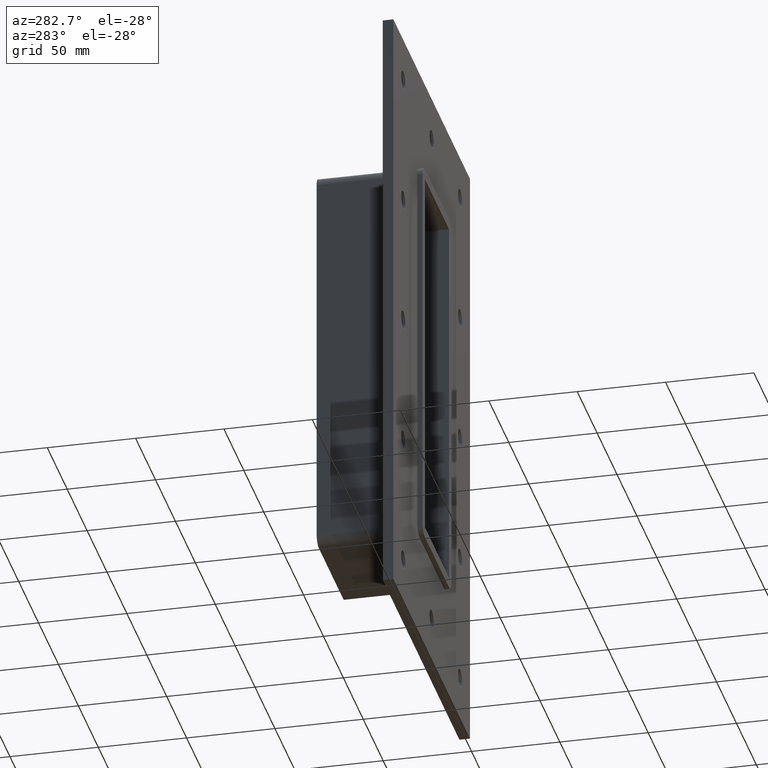
[diagram: clean part render]
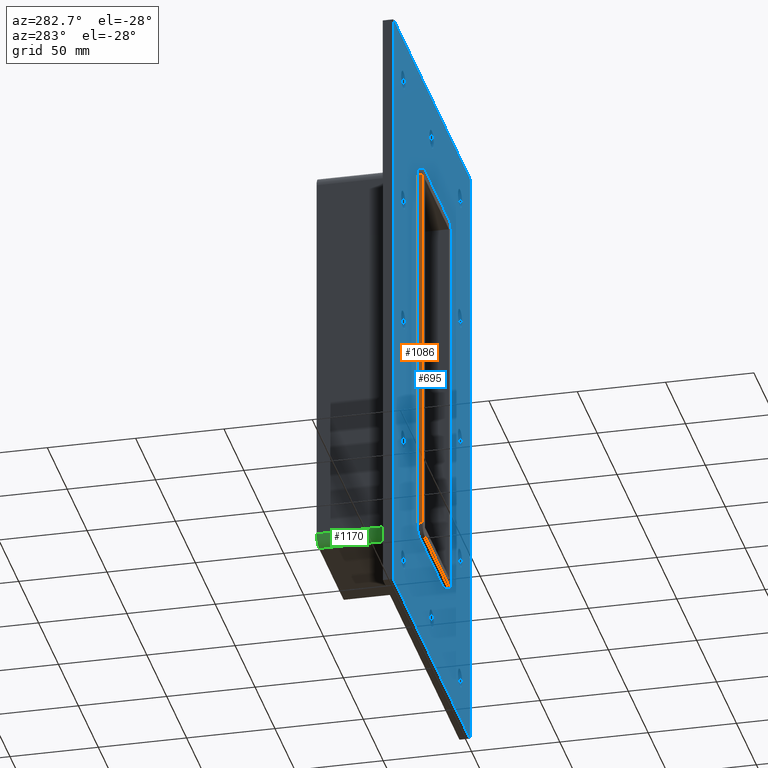
[diagram: same view with three faces highlighted in distinct colors, each labeled with its STEP entity id]
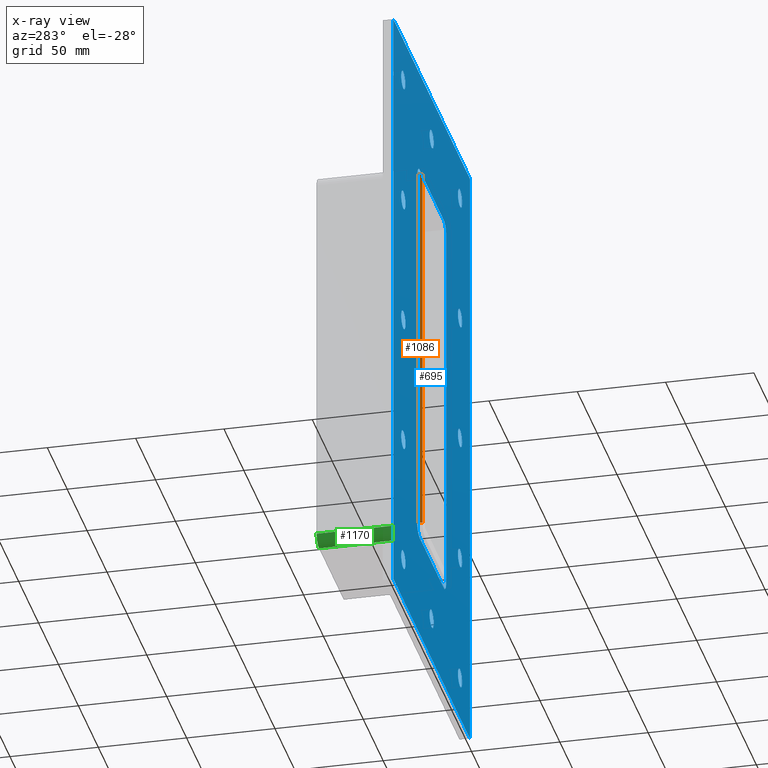
[diagram: x-ray of the same camera — body ghosted, the three highlighted faces saturated]
A machine part, auxiliary view with three faces highlighted in distinct colors.
The next image is the same camera in x-ray (body ghosted, the three faces saturated) — at least one of them is partly hidden behind the body in this view.
Their STEP definitions:

[orange] entity #1086 — the highlighted planar face has unit normal (-1, 0, 0).
#625=CARTESIAN_POINT('',(-36.250000000000007,0.0,-108.99999999999999));
#626=VERTEX_POINT('',#625);
#636=CARTESIAN_POINT('',(-36.250000000000007,0.0,108.99999999999999));
#637=VERTEX_POINT('',#636);
#638=CARTESIAN_POINT('',(-36.250000000000007,0.0,109.0));
#639=DIRECTION('',(0.0,0.0,-1.0));
#640=VECTOR('',#639,218.0);
#641=LINE('',#638,#640);
#642=EDGE_CURVE('',#637,#626,#641,.T.);
#996=CARTESIAN_POINT('',(-36.250000000000007,-3.0,108.99999999999999));
#997=VERTEX_POINT('',#996);
#998=CARTESIAN_POINT('',(-36.250000000000007,0.0,108.99999999999999));
#999=DIRECTION('',(0.0,-1.0,0.0));
#1000=VECTOR('',#999,3.0);
#1001=LINE('',#998,#1000);
#1002=EDGE_CURVE('',#637,#997,#1001,.T.);
#1063=CARTESIAN_POINT('',(-36.250000000000007,0.0,-115.0));
#1064=DIRECTION('',(-1.0,0.0,0.0));
#1065=DIRECTION('',(0.0,0.0,1.0));
#1066=AXIS2_PLACEMENT_3D('',#1063,#1064,#1065);
#1067=PLANE('',#1066);
#1068=ORIENTED_EDGE('',*,*,#642,.T.);
#1069=CARTESIAN_POINT('',(-36.250000000000007,-3.0,-108.99999999999999));
#1070=VERTEX_POINT('',#1069);
#1071=CARTESIAN_POINT('',(-36.250000000000007,-3.0,-108.99999999999999));
#1072=DIRECTION('',(0.0,1.0,0.0));
#1073=VECTOR('',#1072,3.0);
#1074=LINE('',#1071,#1073);
#1075=EDGE_CURVE('',#1070,#626,#1074,.T.);
#1076=ORIENTED_EDGE('',*,*,#1075,.F.);
#1077=CARTESIAN_POINT('',(-36.250000000000007,-3.0,109.0));
#1078=DIRECTION('',(0.0,0.0,-1.0));
#1079=VECTOR('',#1078,218.0);
#1080=LINE('',#1077,#1079);
#1081=EDGE_CURVE('',#997,#1070,#1080,.T.);
#1082=ORIENTED_EDGE('',*,*,#1081,.F.);
#1083=ORIENTED_EDGE('',*,*,#1002,.F.);
#1084=EDGE_LOOP('',(#1068,#1076,#1082,#1083));
#1085=FACE_OUTER_BOUND('',#1084,.T.);
#1086=ADVANCED_FACE('',(#1085),#1067,.T.);

[blue] entity #695 — the highlighted planar face has unit normal (0, 1, 0).
#84=CARTESIAN_POINT('',(-66.000000000000071,0.0,-150.0));
#85=VERTEX_POINT('',#84);
#86=CARTESIAN_POINT('',(-71.250000000000071,0.0,-150.0));
#87=DIRECTION('',(0.0,1.0,0.0));
#88=DIRECTION('',(1.0,0.0,0.0));
#89=AXIS2_PLACEMENT_3D('',#86,#87,#88);
#90=CIRCLE('',#89,5.25);
#91=EDGE_CURVE('',#85,#85,#90,.T.);
#112=CARTESIAN_POINT('',(76.599999999999937,0.0,-75.0));
#113=VERTEX_POINT('',#112);
#114=CARTESIAN_POINT('',(71.349999999999923,0.0,-75.0));
#115=DIRECTION('',(0.0,1.0,0.0));
#116=DIRECTION('',(1.0,0.0,0.0));
#117=AXIS2_PLACEMENT_3D('',#114,#115,#116);
#118=CIRCLE('',#117,5.25);
#119=EDGE_CURVE('',#113,#113,#118,.T.);
#140=CARTESIAN_POINT('',(-66.000000000000071,0.0,-75.0));
#141=VERTEX_POINT('',#140);
#142=CARTESIAN_POINT('',(-71.250000000000071,0.0,-75.0));
#143=DIRECTION('',(0.0,1.0,0.0));
#144=DIRECTION('',(1.0,0.0,0.0));
#145=AXIS2_PLACEMENT_3D('',#142,#143,#144);
#146=CIRCLE('',#145,5.25);
#147=EDGE_CURVE('',#141,#141,#146,.T.);
#168=CARTESIAN_POINT('',(76.599999999999937,0.0,0.0));
#169=VERTEX_POINT('',#168);
#170=CARTESIAN_POINT('',(71.349999999999923,0.0,0.0));
#171=DIRECTION('',(0.0,1.0,0.0));
#172=DIRECTION('',(1.0,0.0,0.0));
#173=AXIS2_PLACEMENT_3D('',#170,#171,#172);
#174=CIRCLE('',#173,5.25);
#175=EDGE_CURVE('',#169,#169,#174,.T.);
#196=CARTESIAN_POINT('',(-66.000000000000071,0.0,0.0));
#197=VERTEX_POINT('',#196);
#198=CARTESIAN_POINT('',(-71.250000000000071,0.0,0.0));
#199=DIRECTION('',(0.0,1.0,0.0));
#200=DIRECTION('',(1.0,0.0,0.0));
#201=AXIS2_PLACEMENT_3D('',#198,#199,#200);
#202=CIRCLE('',#201,5.25);
#203=EDGE_CURVE('',#197,#197,#202,.T.);
#224=CARTESIAN_POINT('',(76.599999999999937,0.0,75.0));
#225=VERTEX_POINT('',#224);
#226=CARTESIAN_POINT('',(71.349999999999923,0.0,75.0));
#227=DIRECTION('',(0.0,1.0,0.0));
#228=DIRECTION('',(1.0,0.0,0.0));
#229=AXIS2_PLACEMENT_3D('',#226,#227,#228);
#230=CIRCLE('',#229,5.25);
#231=EDGE_CURVE('',#225,#225,#230,.T.);
#252=CARTESIAN_POINT('',(-66.000000000000071,0.0,75.0));
#253=VERTEX_POINT('',#252);
#254=CARTESIAN_POINT('',(-71.250000000000071,0.0,75.0));
#255=DIRECTION('',(0.0,1.0,0.0));
#256=DIRECTION('',(1.0,0.0,0.0));
#257=AXIS2_PLACEMENT_3D('',#254,#255,#256);
#258=CIRCLE('',#257,5.25);
#259=EDGE_CURVE('',#253,#253,#258,.T.);
#280=CARTESIAN_POINT('',(5.299999999999931,0.0,150.0));
#281=VERTEX_POINT('',#280);
#282=CARTESIAN_POINT('',(0.049999999999928,0.0,150.0));
#283=DIRECTION('',(0.0,1.0,0.0));
#284=DIRECTION('',(1.0,0.0,0.0));
#285=AXIS2_PLACEMENT_3D('',#282,#283,#284);
#286=CIRCLE('',#285,5.25);
#287=EDGE_CURVE('',#281,#281,#286,.T.);
#308=CARTESIAN_POINT('',(5.299999999999923,0.0,-150.0));
#309=VERTEX_POINT('',#308);
#310=CARTESIAN_POINT('',(0.049999999999919,0.0,-150.0));
#311=DIRECTION('',(0.0,1.0,0.0));
#312=DIRECTION('',(1.0,0.0,0.0));
#313=AXIS2_PLACEMENT_3D('',#310,#311,#312);
#314=CIRCLE('',#313,5.25);
#315=EDGE_CURVE('',#309,#309,#314,.T.);
#336=CARTESIAN_POINT('',(76.599999999999923,0.0,-150.0));
#337=VERTEX_POINT('',#336);
#338=CARTESIAN_POINT('',(71.349999999999923,0.0,-150.0));
#339=DIRECTION('',(0.0,1.0,0.0));
#340=DIRECTION('',(1.0,0.0,0.0));
#341=AXIS2_PLACEMENT_3D('',#338,#339,#340);
#342=CIRCLE('',#341,5.25);
#343=EDGE_CURVE('',#337,#337,#342,.T.);
#364=CARTESIAN_POINT('',(-66.000000000000071,0.0,150.0));
#365=VERTEX_POINT('',#364);
#366=CARTESIAN_POINT('',(-71.250000000000071,0.0,150.0));
#367=DIRECTION('',(0.0,1.0,0.0));
#368=DIRECTION('',(1.0,0.0,0.0));
#369=AXIS2_PLACEMENT_3D('',#366,#367,#368);
#370=CIRCLE('',#369,5.25);
#371=EDGE_CURVE('',#365,#365,#370,.T.);
#392=CARTESIAN_POINT('',(76.599999999999937,0.0,150.0));
#393=VERTEX_POINT('',#392);
#394=CARTESIAN_POINT('',(71.349999999999923,0.0,150.0));
#395=DIRECTION('',(0.0,1.0,0.0));
#396=DIRECTION('',(1.0,0.0,0.0));
#397=AXIS2_PLACEMENT_3D('',#394,#395,#396);
#398=CIRCLE('',#397,5.25);
#399=EDGE_CURVE('',#393,#393,#398,.T.);
#550=CARTESIAN_POINT('',(-7.858537E-015,0.0,0.0));
#551=DIRECTION('',(0.0,1.0,0.0));
#552=DIRECTION('',(0.0,0.0,1.0));
#553=AXIS2_PLACEMENT_3D('',#550,#551,#552);
#554=PLANE('',#553);
#555=CARTESIAN_POINT('',(-96.250000000000014,0.0,175.0));
#556=VERTEX_POINT('',#555);
#557=CARTESIAN_POINT('',(96.25,0.0,175.0));
#558=VERTEX_POINT('',#557);
#559=CARTESIAN_POINT('',(-96.250000000000014,0.0,175.0));
#560=DIRECTION('',(1.0,0.0,0.0));
#561=VECTOR('',#560,192.5);
#562=LINE('',#559,#561);
#563=EDGE_CURVE('',#556,#558,#562,.T.);
#564=ORIENTED_EDGE('',*,*,#563,.F.);
#565=CARTESIAN_POINT('',(-96.250000000000014,0.0,-175.0));
#566=VERTEX_POINT('',#565);
#567=CARTESIAN_POINT('',(-96.250000000000014,0.0,-175.0));
#568=DIRECTION('',(0.0,0.0,1.0));
#569=VECTOR('',#568,350.0);
#570=LINE('',#567,#569);
#571=EDGE_CURVE('',#566,#556,#570,.T.);
#572=ORIENTED_EDGE('',*,*,#571,.F.);
#573=CARTESIAN_POINT('',(96.25,0.0,-175.0));
#574=VERTEX_POINT('',#573);
#575=CARTESIAN_POINT('',(96.25,0.0,-175.0));
#576=DIRECTION('',(-1.0,0.0,0.0));
#577=VECTOR('',#576,192.5);
#578=LINE('',#575,#577);
#579=EDGE_CURVE('',#574,#566,#578,.T.);
#580=ORIENTED_EDGE('',*,*,#579,.F.);
#581=CARTESIAN_POINT('',(96.25,0.0,175.0));
#582=DIRECTION('',(0.0,0.0,-1.0));
#583=VECTOR('',#582,350.0);
#584=LINE('',#581,#583);
#585=EDGE_CURVE('',#558,#574,#584,.T.);
#586=ORIENTED_EDGE('',*,*,#585,.F.);
#587=EDGE_LOOP('',(#564,#572,#580,#586));
#588=FACE_OUTER_BOUND('',#587,.T.);
#589=ORIENTED_EDGE('',*,*,#91,.T.);
#590=EDGE_LOOP('',(#589));
#591=FACE_BOUND('',#590,.T.);
#592=ORIENTED_EDGE('',*,*,#119,.T.);
#593=EDGE_LOOP('',(#592));
#594=FACE_BOUND('',#593,.T.);
#595=ORIENTED_EDGE('',*,*,#147,.T.);
#596=EDGE_LOOP('',(#595));
#597=FACE_BOUND('',#596,.T.);
#598=ORIENTED_EDGE('',*,*,#175,.T.);
#599=EDGE_LOOP('',(#598));
#600=FACE_BOUND('',#599,.T.);
#601=ORIENTED_EDGE('',*,*,#203,.T.);
#602=EDGE_LOOP('',(#601));
#603=FACE_BOUND('',#602,.T.);
#604=ORIENTED_EDGE('',*,*,#231,.T.);
#605=EDGE_LOOP('',(#604));
#606=FACE_BOUND('',#605,.T.);
#607=ORIENTED_EDGE('',*,*,#259,.T.);
#608=EDGE_LOOP('',(#607));
#609=FACE_BOUND('',#608,.T.);
#610=ORIENTED_EDGE('',*,*,#287,.T.);
#611=EDGE_LOOP('',(#610));
#612=FACE_BOUND('',#611,.T.);
#613=ORIENTED_EDGE('',*,*,#315,.T.);
#614=EDGE_LOOP('',(#613));
#615=FACE_BOUND('',#614,.T.);
#616=ORIENTED_EDGE('',*,*,#343,.T.);
#617=EDGE_LOOP('',(#616));
#618=FACE_BOUND('',#617,.T.);
#619=ORIENTED_EDGE('',*,*,#371,.T.);
#620=EDGE_LOOP('',(#619));
#621=FACE_BOUND('',#620,.T.);
#622=ORIENTED_EDGE('',*,*,#399,.T.);
#623=EDGE_LOOP('',(#622));
#624=FACE_BOUND('',#623,.T.);
#625=CARTESIAN_POINT('',(-36.250000000000007,0.0,-108.99999999999999));
#626=VERTEX_POINT('',#625);
#627=CARTESIAN_POINT('',(-30.250000000000004,0.0,-115.0));
#628=VERTEX_POINT('',#627);
#629=CARTESIAN_POINT('',(-30.250000000000004,0.0,-108.99999999999999));
#630=DIRECTION('',(0.0,-1.0,0.0));
#631=DIRECTION('',(-0.707106781186546,0.0,-0.707106781186549));
#632=AXIS2_PLACEMENT_3D('',#629,#630,#631);
#633=CIRCLE('',#632,6.000000000000001);
#634=EDGE_CURVE('',#626,#628,#633,.T.);
#635=ORIENTED_EDGE('',*,*,#634,.F.);
#636=CARTESIAN_POINT('',(-36.250000000000007,0.0,108.99999999999999));
#637=VERTEX_POINT('',#636);
#638=CARTESIAN_POINT('',(-36.250000000000007,0.0,109.0));
#639=DIRECTION('',(0.0,0.0,-1.0));
#640=VECTOR('',#639,218.0);
#641=LINE('',#638,#640);
#642=EDGE_CURVE('',#637,#626,#641,.T.);
#643=ORIENTED_EDGE('',*,*,#642,.F.);
#644=CARTESIAN_POINT('',(-30.250000000000004,0.0,115.0));
#645=VERTEX_POINT('',#644);
#646=CARTESIAN_POINT('',(-30.250000000000004,0.0,108.99999999999999));
#647=DIRECTION('',(0.0,-1.0,0.0));
#648=DIRECTION('',(-0.707106781186546,0.0,0.707106781186549));
#649=AXIS2_PLACEMENT_3D('',#646,#647,#648);
#650=CIRCLE('',#649,6.000000000000001);
#651=EDGE_CURVE('',#645,#637,#650,.T.);
#652=ORIENTED_EDGE('',*,*,#651,.F.);
#653=CARTESIAN_POINT('',(30.250000000000004,0.0,115.0));
#654=VERTEX_POINT('',#653);
#655=CARTESIAN_POINT('',(30.250000000000007,0.0,115.0));
#656=DIRECTION('',(-1.0,0.0,0.0));
#657=VECTOR('',#656,60.500000000000014);
#658=LINE('',#655,#657);
#659=EDGE_CURVE('',#654,#645,#658,.T.);
#660=ORIENTED_EDGE('',*,*,#659,.F.);
#661=CARTESIAN_POINT('',(36.250000000000007,0.0,109.0));
#662=VERTEX_POINT('',#661);
#663=CARTESIAN_POINT('',(30.250000000000004,0.0,109.0));
#664=DIRECTION('',(0.0,-1.0,0.0));
#665=DIRECTION('',(0.707106781186548,0.0,0.707106781186547));
#666=AXIS2_PLACEMENT_3D('',#663,#664,#665);
#667=CIRCLE('',#666,6.0);
#668=EDGE_CURVE('',#662,#654,#667,.T.);
#669=ORIENTED_EDGE('',*,*,#668,.F.);
#670=CARTESIAN_POINT('',(36.250000000000007,0.0,-108.99999999999999));
#671=VERTEX_POINT('',#670);
#672=CARTESIAN_POINT('',(36.250000000000007,0.0,-109.0));
#673=DIRECTION('',(0.0,0.0,1.0));
#674=VECTOR('',#673,218.0);
#675=LINE('',#672,#674);
#676=EDGE_CURVE('',#671,#662,#675,.T.);
#677=ORIENTED_EDGE('',*,*,#676,.F.);
#678=CARTESIAN_POINT('',(30.250000000000004,0.0,-115.0));
#679=VERTEX_POINT('',#678);
#680=CARTESIAN_POINT('',(30.250000000000004,0.0,-108.99999999999999));
#681=DIRECTION('',(0.0,-1.0,0.0));
#682=DIRECTION('',(0.707106781186546,0.0,-0.707106781186549));
#683=AXIS2_PLACEMENT_3D('',#680,#681,#682);
#684=CIRCLE('',#683,6.000000000000001);
#685=EDGE_CURVE('',#679,#671,#684,.T.);
#686=ORIENTED_EDGE('',*,*,#685,.F.);
#687=CARTESIAN_POINT('',(-30.250000000000004,0.0,-115.0));
#688=DIRECTION('',(1.0,0.0,0.0));
#689=VECTOR('',#688,60.5);
#690=LINE('',#687,#689);
#691=EDGE_CURVE('',#628,#679,#690,.T.);
#692=ORIENTED_EDGE('',*,*,#691,.F.);
#693=EDGE_LOOP('',(#635,#643,#652,#660,#669,#677,#686,#692));
#694=FACE_BOUND('',#693,.T.);
#695=ADVANCED_FACE('',(#588,#591,#594,#597,#600,#603,#606,#609,#612,#615,#618,#621,#624,#694),#554,.F.);

[green] entity #1170 — the highlighted cylindrical surface (edge-blend (fillet) strip) has radius 6 mm, axis along (0, 1, 0).
#479=CARTESIAN_POINT('',(-30.250000000000004,6.000000000000001,-115.0));
#480=VERTEX_POINT('',#479);
#481=CARTESIAN_POINT('',(-36.250000000000007,6.000000000000001,-108.99999999999999));
#482=VERTEX_POINT('',#481);
#483=CARTESIAN_POINT('',(-30.250000000000004,6.000000000000001,-108.99999999999999));
#484=DIRECTION('',(0.0,1.0,0.0));
#485=DIRECTION('',(-0.707106781186546,0.0,-0.707106781186549));
#486=AXIS2_PLACEMENT_3D('',#483,#484,#485);
#487=CIRCLE('',#486,6.000000000000001);
#488=EDGE_CURVE('',#480,#482,#487,.T.);
#1045=CARTESIAN_POINT('',(-30.25,57.0,-115.0));
#1046=VERTEX_POINT('',#1045);
#1047=CARTESIAN_POINT('',(-30.250000000000004,57.0,-115.0));
#1048=DIRECTION('',(0.0,-1.0,0.0));
#1049=VECTOR('',#1048,51.0);
#1050=LINE('',#1047,#1049);
#1051=EDGE_CURVE('',#1046,#480,#1050,.T.);
#1146=CARTESIAN_POINT('',(-30.250000000000004,0.0,-108.99999999999999));
#1147=DIRECTION('',(0.0,1.0,0.0));
#1148=DIRECTION('',(-0.707106781186546,0.0,-0.707106781186549));
#1149=AXIS2_PLACEMENT_3D('',#1146,#1147,#1148);
#1150=CYLINDRICAL_SURFACE('',#1149,6.000000000000001);
#1151=ORIENTED_EDGE('',*,*,#488,.T.);
#1152=CARTESIAN_POINT('',(-36.250000000000007,57.0,-108.99999999999999));
#1153=VERTEX_POINT('',#1152);
#1154=CARTESIAN_POINT('',(-36.250000000000007,6.000000000000001,-108.99999999999999));
#1155=DIRECTION('',(0.0,1.0,0.0));
#1156=VECTOR('',#1155,51.0);
#1157=LINE('',#1154,#1156);
#1158=EDGE_CURVE('',#482,#1153,#1157,.T.);
#1159=ORIENTED_EDGE('',*,*,#1158,.T.);
#1160=CARTESIAN_POINT('',(-30.250000000000004,57.0,-108.99999999999999));
#1161=DIRECTION('',(0.0,-1.0,0.0));
#1162=DIRECTION('',(-0.707106781186546,0.0,-0.707106781186549));
#1163=AXIS2_PLACEMENT_3D('',#1160,#1161,#1162);
#1164=CIRCLE('',#1163,6.000000000000001);
#1165=EDGE_CURVE('',#1153,#1046,#1164,.T.);
#1166=ORIENTED_EDGE('',*,*,#1165,.T.);
#1167=ORIENTED_EDGE('',*,*,#1051,.T.);
#1168=EDGE_LOOP('',(#1151,#1159,#1166,#1167));
#1169=FACE_OUTER_BOUND('',#1168,.T.);
#1170=ADVANCED_FACE('',(#1169),#1150,.T.);